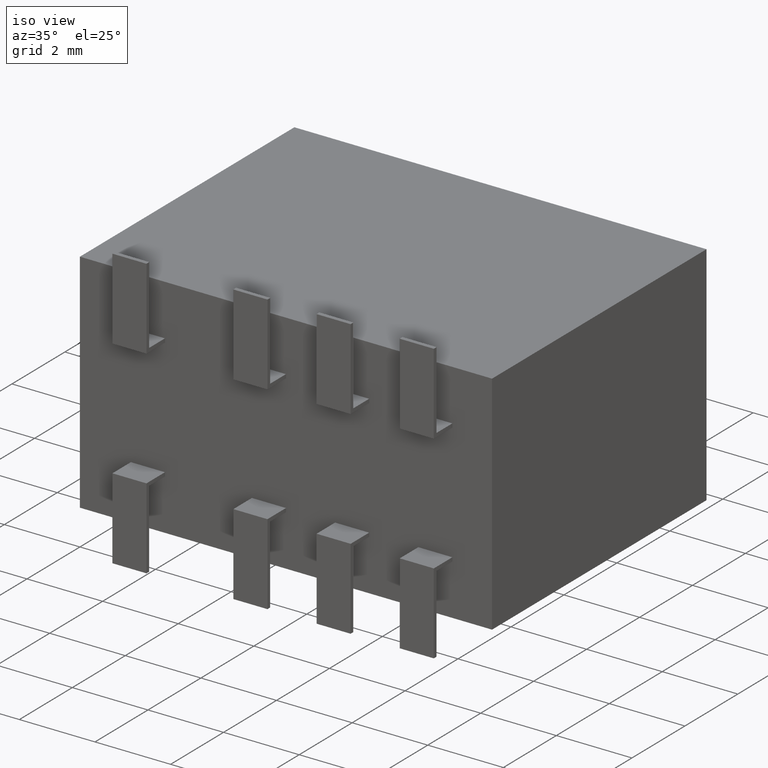
[diagram: clean part render]
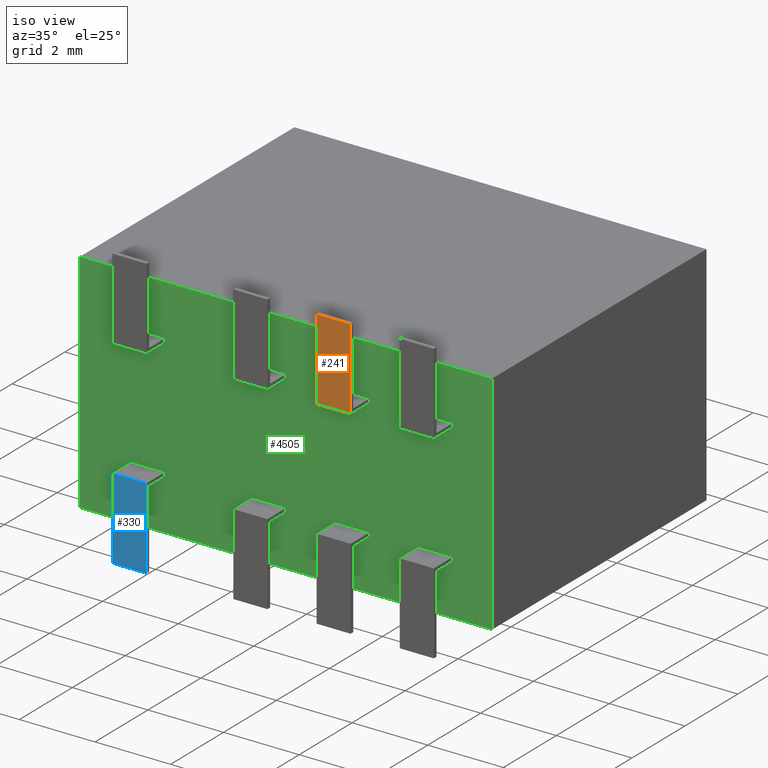
[diagram: same view with three faces highlighted in distinct colors, each labeled with its STEP entity id]
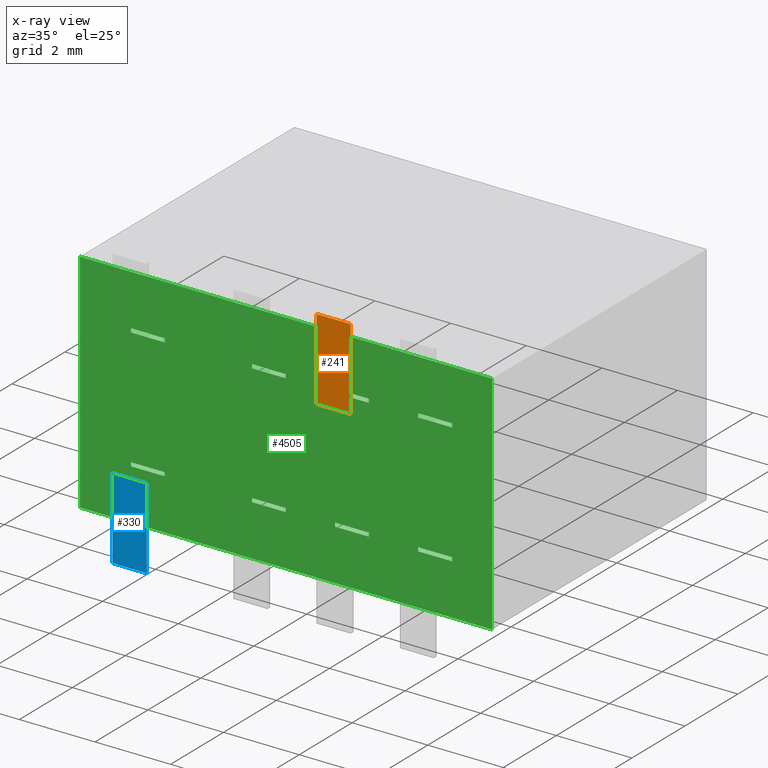
[diagram: x-ray of the same camera — body ghosted, the three highlighted faces saturated]
A machine part, iso view with three faces highlighted in distinct colors.
The next image is the same camera in x-ray (body ghosted, the three faces saturated) — at least one of them is partly hidden behind the body in this view.
Their STEP definitions:

[orange] entity #241 — the highlighted planar face has unit normal (0, -1, -0).
#16 = CARTESIAN_POINT ( 'NONE',  ( 6.750000000000000000, -0.6999999999999997300, -1.450000000000000000 ) ) ;
#88 = CARTESIAN_POINT ( 'NONE',  ( 6.750000000000000000, -0.6999999999999998400, 0.7000000000000000700 ) ) ;
#164 = DIRECTION ( 'NONE',  ( -0.0000000000000000000, 5.042800802258161100E-017, -1.000000000000000000 ) ) ;
#241 = ADVANCED_FACE ( 'NONE', ( #3960 ), #2389, .T. ) ;
#380 = VECTOR ( 'NONE', #4202, 1000.000000000000000 ) ;
#464 = LINE ( 'NONE', #2106, #4054 ) ;
#562 = EDGE_CURVE ( 'NONE', #3368, #1516, #771, .T. ) ;
#740 = DIRECTION ( 'NONE',  ( 0.0000000000000000000, 5.042800802258160500E-017, -1.000000000000000000 ) ) ;
#771 = LINE ( 'NONE', #3599, #4382 ) ;
#850 = ORIENTED_EDGE ( 'NONE', *, *, #562, .F. ) ;
#991 = EDGE_CURVE ( 'NONE', #1769, #2698, #3658, .T. ) ;
#1031 = DIRECTION ( 'NONE',  ( 0.0000000000000000000, -1.000000000000000000, -5.042800802258160500E-017 ) ) ;
#1058 = LINE ( 'NONE', #88, #380 ) ;
#1144 = EDGE_CURVE ( 'NONE', #2698, #1516, #464, .T. ) ;
#1180 = ORIENTED_EDGE ( 'NONE', *, *, #3031, .F. ) ;
#1516 = VERTEX_POINT ( 'NONE', #4413 ) ;
#1762 = CARTESIAN_POINT ( 'NONE',  ( 6.750000000000000000, -0.6999999999999998400, 0.7000000000000000700 ) ) ;
#1769 = VERTEX_POINT ( 'NONE', #1762 ) ;
#2101 = AXIS2_PLACEMENT_3D ( 'NONE', #16, #1031, #740 ) ;
#2106 = CARTESIAN_POINT ( 'NONE',  ( 6.750000000000000000, -0.6999999999999997300, -1.450000000000000000 ) ) ;
#2247 = EDGE_LOOP ( 'NONE', ( #3046, #850, #1180, #2982 ) ) ;
#2389 = PLANE ( 'NONE',  #2101 ) ;
#2698 = VERTEX_POINT ( 'NONE', #3659 ) ;
#2982 = ORIENTED_EDGE ( 'NONE', *, *, #991, .T. ) ;
#3031 = EDGE_CURVE ( 'NONE', #1769, #3368, #1058, .T. ) ;
#3046 = ORIENTED_EDGE ( 'NONE', *, *, #1144, .T. ) ;
#3283 = CARTESIAN_POINT ( 'NONE',  ( 7.649999999999999500, -0.6999999999999998400, 0.7000000000000000700 ) ) ;
#3368 = VERTEX_POINT ( 'NONE', #3283 ) ;
#3449 = DIRECTION ( 'NONE',  ( 1.000000000000000000, 0.0000000000000000000, 0.0000000000000000000 ) ) ;
#3599 = CARTESIAN_POINT ( 'NONE',  ( 7.649999999999999500, -0.6999999999999997300, -1.450000000000000000 ) ) ;
#3658 = LINE ( 'NONE', #3809, #3713 ) ;
#3659 = CARTESIAN_POINT ( 'NONE',  ( 6.750000000000000000, -0.6999999999999997300, -1.450000000000000000 ) ) ;
#3713 = VECTOR ( 'NONE', #4165, 1000.000000000000000 ) ;
#3809 = CARTESIAN_POINT ( 'NONE',  ( 6.750000000000000000, -0.6999999999999997300, -1.450000000000000000 ) ) ;
#3960 = FACE_OUTER_BOUND ( 'NONE', #2247, .T. ) ;
#4054 = VECTOR ( 'NONE', #3449, 1000.000000000000000 ) ;
#4165 = DIRECTION ( 'NONE',  ( -0.0000000000000000000, 5.042800802258161100E-017, -1.000000000000000000 ) ) ;
#4202 = DIRECTION ( 'NONE',  ( 1.000000000000000000, 0.0000000000000000000, 0.0000000000000000000 ) ) ;
#4382 = VECTOR ( 'NONE', #164, 1000.000000000000000 ) ;
#4413 = CARTESIAN_POINT ( 'NONE',  ( 7.649999999999999500, -0.6999999999999997300, -1.450000000000000000 ) ) ;

[blue] entity #330 — the highlighted planar face has unit normal (0, 1, -0).
#122 = VERTEX_POINT ( 'NONE', #2603 ) ;
#207 = EDGE_CURVE ( 'NONE', #2477, #4412, #4174, .T. ) ;
#250 = DIRECTION ( 'NONE',  ( 0.0000000000000000000, 5.042800802258161100E-017, 1.000000000000000000 ) ) ;
#330 = ADVANCED_FACE ( 'NONE', ( #476 ), #3135, .F. ) ;
#445 = VERTEX_POINT ( 'NONE', #1081 ) ;
#476 = FACE_OUTER_BOUND ( 'NONE', #3208, .T. ) ;
#602 = CARTESIAN_POINT ( 'NONE',  ( 1.350000000000000500, -0.6999999999999997300, -4.549999999999999800 ) ) ;
#870 = ORIENTED_EDGE ( 'NONE', *, *, #1440, .F. ) ;
#874 = LINE ( 'NONE', #602, #3552 ) ;
#897 = DIRECTION ( 'NONE',  ( 1.000000000000000000, 0.0000000000000000000, 0.0000000000000000000 ) ) ;
#1049 = CARTESIAN_POINT ( 'NONE',  ( 1.350000000000000500, -0.6999999999999997300, -4.549999999999999800 ) ) ;
#1081 = CARTESIAN_POINT ( 'NONE',  ( 1.350000000000000500, -0.6999999999999998400, -6.700000000000000200 ) ) ;
#1274 = VECTOR ( 'NONE', #3170, 1000.000000000000000 ) ;
#1305 = VECTOR ( 'NONE', #1746, 1000.000000000000000 ) ;
#1345 = CARTESIAN_POINT ( 'NONE',  ( 2.250000000000000400, -0.6999999999999997300, -4.549999999999999800 ) ) ;
#1391 = DIRECTION ( 'NONE',  ( 0.0000000000000000000, 5.042800802258160500E-017, 1.000000000000000000 ) ) ;
#1440 = EDGE_CURVE ( 'NONE', #445, #2477, #874, .T. ) ;
#1536 = AXIS2_PLACEMENT_3D ( 'NONE', #1049, #3498, #1391 ) ;
#1648 = CARTESIAN_POINT ( 'NONE',  ( 1.350000000000000500, -0.6999999999999997300, -4.549999999999999800 ) ) ;
#1706 = ORIENTED_EDGE ( 'NONE', *, *, #2458, .T. ) ;
#1746 = DIRECTION ( 'NONE',  ( 1.000000000000000000, 0.0000000000000000000, 0.0000000000000000000 ) ) ;
#2063 = VECTOR ( 'NONE', #897, 1000.000000000000000 ) ;
#2458 = EDGE_CURVE ( 'NONE', #122, #4412, #3307, .T. ) ;
#2477 = VERTEX_POINT ( 'NONE', #2561 ) ;
#2561 = CARTESIAN_POINT ( 'NONE',  ( 1.350000000000000500, -0.6999999999999997300, -4.549999999999999800 ) ) ;
#2603 = CARTESIAN_POINT ( 'NONE',  ( 2.250000000000000400, -0.6999999999999998400, -6.700000000000000200 ) ) ;
#2808 = CARTESIAN_POINT ( 'NONE',  ( 2.250000000000000400, -0.6999999999999997300, -4.549999999999999800 ) ) ;
#3135 = PLANE ( 'NONE',  #1536 ) ;
#3170 = DIRECTION ( 'NONE',  ( 0.0000000000000000000, 5.042800802258161100E-017, 1.000000000000000000 ) ) ;
#3208 = EDGE_LOOP ( 'NONE', ( #3536, #1706, #4046, #870 ) ) ;
#3307 = LINE ( 'NONE', #2808, #1274 ) ;
#3498 = DIRECTION ( 'NONE',  ( 0.0000000000000000000, 1.000000000000000000, -5.042800802258160500E-017 ) ) ;
#3536 = ORIENTED_EDGE ( 'NONE', *, *, #3581, .T. ) ;
#3552 = VECTOR ( 'NONE', #250, 1000.000000000000000 ) ;
#3581 = EDGE_CURVE ( 'NONE', #445, #122, #4343, .T. ) ;
#3869 = CARTESIAN_POINT ( 'NONE',  ( 1.350000000000000500, -0.6999999999999998400, -6.700000000000000200 ) ) ;
#4046 = ORIENTED_EDGE ( 'NONE', *, *, #207, .F. ) ;
#4174 = LINE ( 'NONE', #1648, #2063 ) ;
#4343 = LINE ( 'NONE', #3869, #1305 ) ;
#4412 = VERTEX_POINT ( 'NONE', #1345 ) ;

[green] entity #4505 — the highlighted planar face has unit normal (0, -1, 0).
#13 = CARTESIAN_POINT ( 'NONE',  ( 10.90000000000000000, 0.0000000000000000000, -6.000000000000000000 ) ) ;
#22 = LINE ( 'NONE', #2059, #4154 ) ;
#23 = DIRECTION ( 'NONE',  ( 0.0000000000000000000, -1.224646799147353700E-016, -1.000000000000000000 ) ) ;
#34 = CARTESIAN_POINT ( 'NONE',  ( 0.0000000000000000000, 0.0000000000000000000, 0.0000000000000000000 ) ) ;
#39 = CARTESIAN_POINT ( 'NONE',  ( 10.90000000000000000, 0.0000000000000000000, 0.0000000000000000000 ) ) ;
#47 = ORIENTED_EDGE ( 'NONE', *, *, #2267, .T. ) ;
#62 = EDGE_CURVE ( 'NONE', #1446, #888, #1739, .T. ) ;
#114 = CARTESIAN_POINT ( 'NONE',  ( 1.350000000000000500, 2.277843046414076900E-016, -4.649999999999999500 ) ) ;
#123 = VERTEX_POINT ( 'NONE', #514 ) ;
#127 = ORIENTED_EDGE ( 'NONE', *, *, #243, .F. ) ;
#129 = ORIENTED_EDGE ( 'NONE', *, *, #62, .F. ) ;
#147 = LINE ( 'NONE', #770, #4114 ) ;
#152 = VECTOR ( 'NONE', #2433, 1000.000000000000000 ) ;
#179 = ORIENTED_EDGE ( 'NONE', *, *, #3994, .T. ) ;
#211 = ORIENTED_EDGE ( 'NONE', *, *, #3495, .F. ) ;
#215 = VECTOR ( 'NONE', #665, 1000.000000000000000 ) ;
#216 = ORIENTED_EDGE ( 'NONE', *, *, #3694, .F. ) ;
#227 = EDGE_LOOP ( 'NONE', ( #2551, #382, #633, #603 ) ) ;
#243 = EDGE_CURVE ( 'NONE', #3788, #2144, #4018, .T. ) ;
#246 = VERTEX_POINT ( 'NONE', #3481 ) ;
#252 = FACE_BOUND ( 'NONE', #3858, .T. ) ;
#282 = EDGE_LOOP ( 'NONE', ( #4088, #1639, #3617, #4474 ) ) ;
#299 = LINE ( 'NONE', #1007, #1302 ) ;
#308 = VECTOR ( 'NONE', #2259, 1000.000000000000000 ) ;
#312 = VERTEX_POINT ( 'NONE', #684 ) ;
#320 = VERTEX_POINT ( 'NONE', #3801 ) ;
#342 = VERTEX_POINT ( 'NONE', #1065 ) ;
#353 = CARTESIAN_POINT ( 'NONE',  ( 1.350000000000000500, 2.277843046414076900E-016, -1.350000000000000100 ) ) ;
#375 = VERTEX_POINT ( 'NONE', #2861 ) ;
#376 = ORIENTED_EDGE ( 'NONE', *, *, #2889, .F. ) ;
#379 = DIRECTION ( 'NONE',  ( 1.000000000000000000, 0.0000000000000000000, 0.0000000000000000000 ) ) ;
#382 = ORIENTED_EDGE ( 'NONE', *, *, #1849, .F. ) ;
#427 = VECTOR ( 'NONE', #3524, 1000.000000000000000 ) ;
#441 = ORIENTED_EDGE ( 'NONE', *, *, #1908, .T. ) ;
#447 = VERTEX_POINT ( 'NONE', #3924 ) ;
#449 = EDGE_LOOP ( 'NONE', ( #2692, #2022, #2090, #1430 ) ) ;
#469 = VECTOR ( 'NONE', #2415, 1000.000000000000000 ) ;
#491 = CARTESIAN_POINT ( 'NONE',  ( 4.549999999999999800, 2.400307726328811900E-016, -1.450000000000000000 ) ) ;
#514 = CARTESIAN_POINT ( 'NONE',  ( 1.350000000000000500, 2.400307726328811900E-016, -1.450000000000000000 ) ) ;
#519 = CARTESIAN_POINT ( 'NONE',  ( 8.949999999999999300, 2.400307726328811900E-016, -1.450000000000000000 ) ) ;
#542 = LINE ( 'NONE', #4506, #3627 ) ;
#546 = ORIENTED_EDGE ( 'NONE', *, *, #2465, .T. ) ;
#575 = CARTESIAN_POINT ( 'NONE',  ( 4.549999999999999800, 2.277843046414076900E-016, -1.350000000000000100 ) ) ;
#593 = LINE ( 'NONE', #3776, #1373 ) ;
#603 = ORIENTED_EDGE ( 'NONE', *, *, #1167, .F. ) ;
#633 = ORIENTED_EDGE ( 'NONE', *, *, #3045, .F. ) ;
#653 = CARTESIAN_POINT ( 'NONE',  ( 8.949999999999999300, 2.400307726328811900E-016, -4.549999999999999800 ) ) ;
#665 = DIRECTION ( 'NONE',  ( 1.000000000000000000, 0.0000000000000000000, 0.0000000000000000000 ) ) ;
#668 = VERTEX_POINT ( 'NONE', #3978 ) ;
#669 = DIRECTION ( 'NONE',  ( 1.000000000000000000, 0.0000000000000000000, 0.0000000000000000000 ) ) ;
#673 = CARTESIAN_POINT ( 'NONE',  ( 2.250000000000000400, 2.400307726328811900E-016, -4.549999999999999800 ) ) ;
#684 = CARTESIAN_POINT ( 'NONE',  ( 4.549999999999999800, 2.400307726328811900E-016, -1.450000000000000000 ) ) ;
#770 = CARTESIAN_POINT ( 'NONE',  ( 4.549999999999999800, 2.277843046414076900E-016, -4.649999999999999500 ) ) ;
#775 = VECTOR ( 'NONE', #1734, 1000.000000000000000 ) ;
#783 = DIRECTION ( 'NONE',  ( 0.0000000000000000000, -1.224646799147353700E-016, 1.000000000000000000 ) ) ;
#809 = EDGE_CURVE ( 'NONE', #447, #4301, #2837, .T. ) ;
#816 = CARTESIAN_POINT ( 'NONE',  ( 2.250000000000000400, 2.277843046414076900E-016, -1.350000000000000100 ) ) ;
#828 = LINE ( 'NONE', #2926, #308 ) ;
#888 = VERTEX_POINT ( 'NONE', #4189 ) ;
#904 = EDGE_CURVE ( 'NONE', #1053, #4450, #22, .T. ) ;
#910 = VECTOR ( 'NONE', #4477, 1000.000000000000000 ) ;
#939 = ORIENTED_EDGE ( 'NONE', *, *, #2062, .T. ) ;
#945 = VERTEX_POINT ( 'NONE', #816 ) ;
#975 = CARTESIAN_POINT ( 'NONE',  ( 1.350000000000000500, 2.400307726328811900E-016, -4.549999999999999800 ) ) ;
#1002 = ORIENTED_EDGE ( 'NONE', *, *, #3789, .F. ) ;
#1007 = CARTESIAN_POINT ( 'NONE',  ( 1.350000000000000500, 2.400307726328811900E-016, -4.549999999999999800 ) ) ;
#1029 = EDGE_CURVE ( 'NONE', #246, #2144, #3331, .T. ) ;
#1030 = LINE ( 'NONE', #2409, #3230 ) ;
#1033 = CARTESIAN_POINT ( 'NONE',  ( 4.549999999999999800, 2.400307726328811900E-016, -1.450000000000000000 ) ) ;
#1047 = CARTESIAN_POINT ( 'NONE',  ( 7.649999999999999500, 0.0000000000000000000, -1.450000000000000000 ) ) ;
#1048 = LINE ( 'NONE', #1371, #152 ) ;
#1053 = VERTEX_POINT ( 'NONE', #1383 ) ;
#1059 = ORIENTED_EDGE ( 'NONE', *, *, #3263, .F. ) ;
#1065 = CARTESIAN_POINT ( 'NONE',  ( 10.90000000000000000, 0.0000000000000000000, 0.0000000000000000000 ) ) ;
#1067 = CARTESIAN_POINT ( 'NONE',  ( 2.250000000000000400, 2.400307726328811900E-016, -4.549999999999999800 ) ) ;
#1069 = EDGE_CURVE ( 'NONE', #1624, #2600, #1030, .T. ) ;
#1074 = LINE ( 'NONE', #1067, #2823 ) ;
#1080 = CARTESIAN_POINT ( 'NONE',  ( 4.549999999999999800, 2.400307726328811900E-016, -4.549999999999999800 ) ) ;
#1109 = EDGE_LOOP ( 'NONE', ( #3807, #179, #939, #2508 ) ) ;
#1128 = CARTESIAN_POINT ( 'NONE',  ( 7.649999999999999500, 2.277843046414076900E-016, -1.350000000000000100 ) ) ;
#1129 = EDGE_LOOP ( 'NONE', ( #1059, #2203, #2638, #129 ) ) ;
#1132 = DIRECTION ( 'NONE',  ( -1.000000000000000000, -0.0000000000000000000, -0.0000000000000000000 ) ) ;
#1147 = LINE ( 'NONE', #3061, #2121 ) ;
#1167 = EDGE_CURVE ( 'NONE', #4301, #342, #1667, .T. ) ;
#1176 = DIRECTION ( 'NONE',  ( 1.000000000000000000, 0.0000000000000000000, 0.0000000000000000000 ) ) ;
#1197 = EDGE_CURVE ( 'NONE', #3472, #4507, #3121, .T. ) ;
#1200 = LINE ( 'NONE', #2840, #1789 ) ;
#1267 = VERTEX_POINT ( 'NONE', #114 ) ;
#1302 = VECTOR ( 'NONE', #2042, 1000.000000000000000 ) ;
#1315 = CARTESIAN_POINT ( 'NONE',  ( 9.850000000000001400, 0.0000000000000000000, -4.649999999999999500 ) ) ;
#1330 = ORIENTED_EDGE ( 'NONE', *, *, #1614, .F. ) ;
#1371 = CARTESIAN_POINT ( 'NONE',  ( 2.250000000000000400, 2.400307726328811900E-016, -1.450000000000000000 ) ) ;
#1373 = VECTOR ( 'NONE', #1992, 1000.000000000000000 ) ;
#1383 = CARTESIAN_POINT ( 'NONE',  ( 6.750000000000000000, 2.400307726328811900E-016, -1.450000000000000000 ) ) ;
#1386 = DIRECTION ( 'NONE',  ( 0.0000000000000000000, -1.224646799147353700E-016, 1.000000000000000000 ) ) ;
#1387 = VERTEX_POINT ( 'NONE', #1935 ) ;
#1430 = ORIENTED_EDGE ( 'NONE', *, *, #3913, .F. ) ;
#1435 = LINE ( 'NONE', #653, #215 ) ;
#1446 = VERTEX_POINT ( 'NONE', #2986 ) ;
#1491 = VERTEX_POINT ( 'NONE', #2677 ) ;
#1494 = CARTESIAN_POINT ( 'NONE',  ( 0.0000000000000000000, 0.0000000000000000000, -6.000000000000000000 ) ) ;
#1529 = CARTESIAN_POINT ( 'NONE',  ( 6.750000000000000000, 2.277843046414076900E-016, -4.649999999999999500 ) ) ;
#1546 = LINE ( 'NONE', #575, #2839 ) ;
#1564 = VECTOR ( 'NONE', #1132, 1000.000000000000000 ) ;
#1576 = ORIENTED_EDGE ( 'NONE', *, *, #2908, .T. ) ;
#1580 = VERTEX_POINT ( 'NONE', #2033 ) ;
#1614 = EDGE_CURVE ( 'NONE', #1053, #3472, #1147, .T. ) ;
#1624 = VERTEX_POINT ( 'NONE', #1683 ) ;
#1630 = LINE ( 'NONE', #39, #4020 ) ;
#1639 = ORIENTED_EDGE ( 'NONE', *, *, #3501, .T. ) ;
#1642 = EDGE_LOOP ( 'NONE', ( #2472, #441, #3853, #1330 ) ) ;
#1647 = EDGE_CURVE ( 'NONE', #2875, #3788, #1200, .T. ) ;
#1667 = LINE ( 'NONE', #34, #775 ) ;
#1675 = CARTESIAN_POINT ( 'NONE',  ( 4.549999999999999800, 2.400307726328811900E-016, -4.549999999999999800 ) ) ;
#1683 = CARTESIAN_POINT ( 'NONE',  ( 9.850000000000001400, 0.0000000000000000000, -1.450000000000000000 ) ) ;
#1688 = CARTESIAN_POINT ( 'NONE',  ( 5.450000000000000200, 2.400307726328811900E-016, -1.450000000000000000 ) ) ;
#1710 = CARTESIAN_POINT ( 'NONE',  ( 7.649999999999999500, 2.400307726328811900E-016, -4.549999999999999800 ) ) ;
#1713 = LINE ( 'NONE', #1710, #3592 ) ;
#1717 = DIRECTION ( 'NONE',  ( 0.0000000000000000000, -1.224646799147353700E-016, -1.000000000000000000 ) ) ;
#1719 = EDGE_CURVE ( 'NONE', #2818, #3872, #3553, .T. ) ;
#1734 = DIRECTION ( 'NONE',  ( 1.000000000000000000, 0.0000000000000000000, 0.0000000000000000000 ) ) ;
#1737 = CARTESIAN_POINT ( 'NONE',  ( 9.850000000000001400, 2.400307726328811900E-016, -4.549999999999999800 ) ) ;
#1739 = LINE ( 'NONE', #1529, #4344 ) ;
#1774 = DIRECTION ( 'NONE',  ( 0.0000000000000000000, 0.0000000000000000000, -1.000000000000000000 ) ) ;
#1780 = CARTESIAN_POINT ( 'NONE',  ( 5.450000000000000200, 2.277843046414076900E-016, -1.350000000000000100 ) ) ;
#1786 = LINE ( 'NONE', #491, #3905 ) ;
#1789 = VECTOR ( 'NONE', #1717, 1000.000000000000000 ) ;
#1821 = EDGE_CURVE ( 'NONE', #312, #1580, #1786, .T. ) ;
#1849 = EDGE_CURVE ( 'NONE', #2847, #447, #4284, .T. ) ;
#1866 = LINE ( 'NONE', #1915, #3489 ) ;
#1877 = EDGE_CURVE ( 'NONE', #375, #4087, #147, .T. ) ;
#1908 = EDGE_CURVE ( 'NONE', #4450, #4507, #3666, .T. ) ;
#1915 = CARTESIAN_POINT ( 'NONE',  ( 5.450000000000000200, 2.400307726328811900E-016, -4.549999999999999800 ) ) ;
#1935 = CARTESIAN_POINT ( 'NONE',  ( 8.949999999999999300, 2.400307726328811900E-016, -1.450000000000000000 ) ) ;
#1941 = VECTOR ( 'NONE', #2945, 1000.000000000000000 ) ;
#1946 = FACE_BOUND ( 'NONE', #282, .T. ) ;
#1955 = CARTESIAN_POINT ( 'NONE',  ( 0.0000000000000000000, 0.0000000000000000000, 0.0000000000000000000 ) ) ;
#1960 = VERTEX_POINT ( 'NONE', #2569 ) ;
#1980 = EDGE_CURVE ( 'NONE', #1387, #1624, #3722, .T. ) ;
#1992 = DIRECTION ( 'NONE',  ( 0.0000000000000000000, -1.224646799147353700E-016, 1.000000000000000000 ) ) ;
#1993 = LINE ( 'NONE', #1033, #3507 ) ;
#2022 = ORIENTED_EDGE ( 'NONE', *, *, #2663, .T. ) ;
#2033 = CARTESIAN_POINT ( 'NONE',  ( 4.549999999999999800, 2.277843046414076900E-016, -1.350000000000000100 ) ) ;
#2042 = DIRECTION ( 'NONE',  ( 0.0000000000000000000, -1.224646799147353700E-016, -1.000000000000000000 ) ) ;
#2046 = CARTESIAN_POINT ( 'NONE',  ( 1.350000000000000500, 2.400307726328811900E-016, -4.549999999999999800 ) ) ;
#2059 = CARTESIAN_POINT ( 'NONE',  ( 6.750000000000000000, 2.400307726328811900E-016, -1.450000000000000000 ) ) ;
#2062 = EDGE_CURVE ( 'NONE', #320, #4087, #1866, .T. ) ;
#2090 = ORIENTED_EDGE ( 'NONE', *, *, #2291, .F. ) ;
#2097 = VECTOR ( 'NONE', #4497, 1000.000000000000000 ) ;
#2118 = LINE ( 'NONE', #3483, #3898 ) ;
#2121 = VECTOR ( 'NONE', #3442, 1000.000000000000000 ) ;
#2134 = FACE_BOUND ( 'NONE', #1129, .T. ) ;
#2144 = VERTEX_POINT ( 'NONE', #1315 ) ;
#2167 = VECTOR ( 'NONE', #3808, 1000.000000000000000 ) ;
#2187 = DIRECTION ( 'NONE',  ( 1.000000000000000000, 0.0000000000000000000, 0.0000000000000000000 ) ) ;
#2203 = ORIENTED_EDGE ( 'NONE', *, *, #3343, .T. ) ;
#2210 = VERTEX_POINT ( 'NONE', #2393 ) ;
#2259 = DIRECTION ( 'NONE',  ( 1.000000000000000000, 0.0000000000000000000, 0.0000000000000000000 ) ) ;
#2262 = LINE ( 'NONE', #353, #910 ) ;
#2267 = EDGE_CURVE ( 'NONE', #1491, #945, #2262, .T. ) ;
#2271 = EDGE_CURVE ( 'NONE', #3633, #888, #1713, .T. ) ;
#2287 = LINE ( 'NONE', #3944, #4449 ) ;
#2291 = EDGE_CURVE ( 'NONE', #2532, #2985, #2548, .T. ) ;
#2329 = CARTESIAN_POINT ( 'NONE',  ( 8.949999999999999300, 2.400307726328811900E-016, -1.450000000000000000 ) ) ;
#2339 = VECTOR ( 'NONE', #2187, 1000.000000000000000 ) ;
#2385 = DIRECTION ( 'NONE',  ( 1.000000000000000000, 0.0000000000000000000, 0.0000000000000000000 ) ) ;
#2390 = CARTESIAN_POINT ( 'NONE',  ( 1.350000000000000500, 2.277843046414076900E-016, -4.649999999999999500 ) ) ;
#2391 = DIRECTION ( 'NONE',  ( 0.0000000000000000000, -1.224646799147353700E-016, 1.000000000000000000 ) ) ;
#2393 = CARTESIAN_POINT ( 'NONE',  ( 2.250000000000000400, 0.0000000000000000000, -4.649999999999999500 ) ) ;
#2409 = CARTESIAN_POINT ( 'NONE',  ( 9.850000000000001400, 2.400307726328811900E-016, -1.450000000000000000 ) ) ;
#2415 = DIRECTION ( 'NONE',  ( 1.000000000000000000, 0.0000000000000000000, 0.0000000000000000000 ) ) ;
#2433 = DIRECTION ( 'NONE',  ( 0.0000000000000000000, -1.224646799147353700E-016, 1.000000000000000000 ) ) ;
#2465 = EDGE_CURVE ( 'NONE', #3872, #2210, #1074, .T. ) ;
#2469 = FACE_BOUND ( 'NONE', #1109, .T. ) ;
#2472 = ORIENTED_EDGE ( 'NONE', *, *, #904, .T. ) ;
#2508 = ORIENTED_EDGE ( 'NONE', *, *, #1877, .F. ) ;
#2515 = CARTESIAN_POINT ( 'NONE',  ( 5.450000000000000200, 0.0000000000000000000, -1.450000000000000000 ) ) ;
#2527 = DIRECTION ( 'NONE',  ( 1.000000000000000000, 0.0000000000000000000, 0.0000000000000000000 ) ) ;
#2532 = VERTEX_POINT ( 'NONE', #2515 ) ;
#2548 = LINE ( 'NONE', #1688, #2097 ) ;
#2551 = ORIENTED_EDGE ( 'NONE', *, *, #809, .F. ) ;
#2558 = VECTOR ( 'NONE', #3375, 1000.000000000000000 ) ;
#2569 = CARTESIAN_POINT ( 'NONE',  ( 8.949999999999999300, 2.277843046414076900E-016, -1.350000000000000100 ) ) ;
#2582 = ORIENTED_EDGE ( 'NONE', *, *, #1029, .T. ) ;
#2600 = VERTEX_POINT ( 'NONE', #4290 ) ;
#2638 = ORIENTED_EDGE ( 'NONE', *, *, #2271, .T. ) ;
#2663 = EDGE_CURVE ( 'NONE', #1580, #2985, #1546, .T. ) ;
#2677 = CARTESIAN_POINT ( 'NONE',  ( 1.350000000000000500, 2.277843046414076900E-016, -1.350000000000000100 ) ) ;
#2692 = ORIENTED_EDGE ( 'NONE', *, *, #1821, .T. ) ;
#2737 = CARTESIAN_POINT ( 'NONE',  ( 8.949999999999999300, 2.277843046414076900E-016, -1.350000000000000100 ) ) ;
#2750 = EDGE_CURVE ( 'NONE', #1387, #1960, #3823, .T. ) ;
#2816 = EDGE_CURVE ( 'NONE', #123, #1491, #593, .T. ) ;
#2818 = VERTEX_POINT ( 'NONE', #975 ) ;
#2823 = VECTOR ( 'NONE', #2827, 1000.000000000000000 ) ;
#2827 = DIRECTION ( 'NONE',  ( 0.0000000000000000000, -1.224646799147353700E-016, -1.000000000000000000 ) ) ;
#2837 = LINE ( 'NONE', #3043, #2558 ) ;
#2839 = VECTOR ( 'NONE', #1176, 1000.000000000000000 ) ;
#2840 = CARTESIAN_POINT ( 'NONE',  ( 8.949999999999999300, 2.400307726328811900E-016, -4.549999999999999800 ) ) ;
#2842 = CARTESIAN_POINT ( 'NONE',  ( 7.649999999999999500, 2.400307726328811900E-016, -4.549999999999999800 ) ) ;
#2847 = VERTEX_POINT ( 'NONE', #13 ) ;
#2860 = VECTOR ( 'NONE', #669, 1000.000000000000000 ) ;
#2861 = CARTESIAN_POINT ( 'NONE',  ( 4.549999999999999800, 2.277843046414076900E-016, -4.649999999999999500 ) ) ;
#2875 = VERTEX_POINT ( 'NONE', #3421 ) ;
#2884 = CARTESIAN_POINT ( 'NONE',  ( 0.0000000000000000000, 0.0000000000000000000, 0.0000000000000000000 ) ) ;
#2889 = EDGE_CURVE ( 'NONE', #123, #3306, #542, .T. ) ;
#2900 = VECTOR ( 'NONE', #3532, 1000.000000000000000 ) ;
#2908 = EDGE_CURVE ( 'NONE', #2875, #246, #1435, .T. ) ;
#2926 = CARTESIAN_POINT ( 'NONE',  ( 6.750000000000000000, 2.400307726328811900E-016, -4.549999999999999800 ) ) ;
#2945 = DIRECTION ( 'NONE',  ( 1.000000000000000000, 0.0000000000000000000, 0.0000000000000000000 ) ) ;
#2985 = VERTEX_POINT ( 'NONE', #1780 ) ;
#2986 = CARTESIAN_POINT ( 'NONE',  ( 6.750000000000000000, 2.277843046414076900E-016, -4.649999999999999500 ) ) ;
#3043 = CARTESIAN_POINT ( 'NONE',  ( 0.0000000000000000000, 0.0000000000000000000, 0.0000000000000000000 ) ) ;
#3045 = EDGE_CURVE ( 'NONE', #342, #2847, #1630, .T. ) ;
#3061 = CARTESIAN_POINT ( 'NONE',  ( 6.750000000000000000, 2.400307726328811900E-016, -1.450000000000000000 ) ) ;
#3107 = DIRECTION ( 'NONE',  ( 1.000000000000000000, 0.0000000000000000000, 0.0000000000000000000 ) ) ;
#3121 = LINE ( 'NONE', #3127, #2167 ) ;
#3126 = ORIENTED_EDGE ( 'NONE', *, *, #1719, .T. ) ;
#3127 = CARTESIAN_POINT ( 'NONE',  ( 7.649999999999999500, 2.400307726328811900E-016, -1.450000000000000000 ) ) ;
#3136 = DIRECTION ( 'NONE',  ( 1.000000000000000000, 0.0000000000000000000, 0.0000000000000000000 ) ) ;
#3194 = VECTOR ( 'NONE', #4104, 1000.000000000000000 ) ;
#3199 = FACE_BOUND ( 'NONE', #449, .T. ) ;
#3230 = VECTOR ( 'NONE', #2391, 1000.000000000000000 ) ;
#3232 = DIRECTION ( 'NONE',  ( 0.0000000000000000000, -0.0000000000000000000, -1.000000000000000000 ) ) ;
#3263 = EDGE_CURVE ( 'NONE', #668, #1446, #2287, .T. ) ;
#3273 = ORIENTED_EDGE ( 'NONE', *, *, #2816, .T. ) ;
#3293 = ORIENTED_EDGE ( 'NONE', *, *, #1647, .F. ) ;
#3306 = VERTEX_POINT ( 'NONE', #4387 ) ;
#3331 = LINE ( 'NONE', #1737, #2900 ) ;
#3343 = EDGE_CURVE ( 'NONE', #668, #3633, #828, .T. ) ;
#3375 = DIRECTION ( 'NONE',  ( -0.0000000000000000000, -0.0000000000000000000, 1.000000000000000000 ) ) ;
#3387 = LINE ( 'NONE', #1080, #427 ) ;
#3402 = DIRECTION ( 'NONE',  ( 0.0000000000000000000, -1.224646799147353700E-016, -1.000000000000000000 ) ) ;
#3421 = CARTESIAN_POINT ( 'NONE',  ( 8.949999999999999300, 2.400307726328811900E-016, -4.549999999999999800 ) ) ;
#3426 = VECTOR ( 'NONE', #4112, 1000.000000000000000 ) ;
#3442 = DIRECTION ( 'NONE',  ( 1.000000000000000000, 0.0000000000000000000, 0.0000000000000000000 ) ) ;
#3443 = CARTESIAN_POINT ( 'NONE',  ( 8.949999999999999300, 2.277843046414076900E-016, -4.649999999999999500 ) ) ;
#3455 = FACE_BOUND ( 'NONE', #1642, .T. ) ;
#3472 = VERTEX_POINT ( 'NONE', #1047 ) ;
#3474 = AXIS2_PLACEMENT_3D ( 'NONE', #2884, #3530, #3232 ) ;
#3481 = CARTESIAN_POINT ( 'NONE',  ( 9.850000000000001400, 2.400307726328811900E-016, -4.549999999999999800 ) ) ;
#3483 = CARTESIAN_POINT ( 'NONE',  ( 4.549999999999999800, 2.400307726328811900E-016, -4.549999999999999800 ) ) ;
#3489 = VECTOR ( 'NONE', #3402, 1000.000000000000000 ) ;
#3495 = EDGE_CURVE ( 'NONE', #3306, #945, #1048, .T. ) ;
#3501 = EDGE_CURVE ( 'NONE', #1960, #2600, #3676, .T. ) ;
#3507 = VECTOR ( 'NONE', #3107, 1000.000000000000000 ) ;
#3524 = DIRECTION ( 'NONE',  ( 0.0000000000000000000, -1.224646799147353700E-016, -1.000000000000000000 ) ) ;
#3530 = DIRECTION ( 'NONE',  ( 0.0000000000000000000, -1.000000000000000000, 0.0000000000000000000 ) ) ;
#3532 = DIRECTION ( 'NONE',  ( 0.0000000000000000000, -1.224646799147353700E-016, -1.000000000000000000 ) ) ;
#3553 = LINE ( 'NONE', #2046, #469 ) ;
#3558 = PLANE ( 'NONE',  #3474 ) ;
#3592 = VECTOR ( 'NONE', #23, 1000.000000000000000 ) ;
#3604 = EDGE_CURVE ( 'NONE', #4251, #375, #3387, .T. ) ;
#3616 = FACE_BOUND ( 'NONE', #3674, .T. ) ;
#3617 = ORIENTED_EDGE ( 'NONE', *, *, #1069, .F. ) ;
#3627 = VECTOR ( 'NONE', #2385, 1000.000000000000000 ) ;
#3633 = VERTEX_POINT ( 'NONE', #2842 ) ;
#3666 = LINE ( 'NONE', #3961, #2339 ) ;
#3674 = EDGE_LOOP ( 'NONE', ( #216, #3126, #546, #1002 ) ) ;
#3676 = LINE ( 'NONE', #2737, #2860 ) ;
#3694 = EDGE_CURVE ( 'NONE', #2818, #1267, #299, .T. ) ;
#3699 = EDGE_LOOP ( 'NONE', ( #3273, #47, #211, #376 ) ) ;
#3722 = LINE ( 'NONE', #519, #1941 ) ;
#3755 = CARTESIAN_POINT ( 'NONE',  ( 8.949999999999999300, 2.277843046414076900E-016, -4.649999999999999500 ) ) ;
#3776 = CARTESIAN_POINT ( 'NONE',  ( 1.350000000000000500, 2.400307726328811900E-016, -1.450000000000000000 ) ) ;
#3788 = VERTEX_POINT ( 'NONE', #3755 ) ;
#3789 = EDGE_CURVE ( 'NONE', #1267, #2210, #3902, .T. ) ;
#3801 = CARTESIAN_POINT ( 'NONE',  ( 5.450000000000000200, 2.400307726328811900E-016, -4.549999999999999800 ) ) ;
#3807 = ORIENTED_EDGE ( 'NONE', *, *, #3604, .F. ) ;
#3808 = DIRECTION ( 'NONE',  ( 0.0000000000000000000, -1.224646799147353700E-016, 1.000000000000000000 ) ) ;
#3823 = LINE ( 'NONE', #2329, #3426 ) ;
#3846 = CARTESIAN_POINT ( 'NONE',  ( 6.750000000000000000, 2.277843046414076900E-016, -1.350000000000000100 ) ) ;
#3853 = ORIENTED_EDGE ( 'NONE', *, *, #1197, .F. ) ;
#3854 = FACE_BOUND ( 'NONE', #3699, .T. ) ;
#3858 = EDGE_LOOP ( 'NONE', ( #3293, #1576, #2582, #127 ) ) ;
#3872 = VERTEX_POINT ( 'NONE', #673 ) ;
#3898 = VECTOR ( 'NONE', #3136, 1000.000000000000000 ) ;
#3902 = LINE ( 'NONE', #2390, #3194 ) ;
#3905 = VECTOR ( 'NONE', #783, 1000.000000000000000 ) ;
#3913 = EDGE_CURVE ( 'NONE', #312, #2532, #1993, .T. ) ;
#3924 = CARTESIAN_POINT ( 'NONE',  ( 0.0000000000000000000, 0.0000000000000000000, -6.000000000000000000 ) ) ;
#3944 = CARTESIAN_POINT ( 'NONE',  ( 6.750000000000000000, 2.400307726328811900E-016, -4.549999999999999800 ) ) ;
#3961 = CARTESIAN_POINT ( 'NONE',  ( 6.750000000000000000, 2.277843046414076900E-016, -1.350000000000000100 ) ) ;
#3978 = CARTESIAN_POINT ( 'NONE',  ( 6.750000000000000000, 2.400307726328811900E-016, -4.549999999999999800 ) ) ;
#3994 = EDGE_CURVE ( 'NONE', #4251, #320, #2118, .T. ) ;
#4009 = DIRECTION ( 'NONE',  ( 1.000000000000000000, 0.0000000000000000000, 0.0000000000000000000 ) ) ;
#4011 = FACE_OUTER_BOUND ( 'NONE', #227, .T. ) ;
#4018 = LINE ( 'NONE', #3443, #4179 ) ;
#4020 = VECTOR ( 'NONE', #1774, 1000.000000000000000 ) ;
#4087 = VERTEX_POINT ( 'NONE', #4247 ) ;
#4088 = ORIENTED_EDGE ( 'NONE', *, *, #2750, .T. ) ;
#4104 = DIRECTION ( 'NONE',  ( 1.000000000000000000, 0.0000000000000000000, 0.0000000000000000000 ) ) ;
#4112 = DIRECTION ( 'NONE',  ( 0.0000000000000000000, -1.224646799147353700E-016, 1.000000000000000000 ) ) ;
#4114 = VECTOR ( 'NONE', #2527, 1000.000000000000000 ) ;
#4154 = VECTOR ( 'NONE', #1386, 1000.000000000000000 ) ;
#4179 = VECTOR ( 'NONE', #379, 1000.000000000000000 ) ;
#4189 = CARTESIAN_POINT ( 'NONE',  ( 7.649999999999999500, 0.0000000000000000000, -4.649999999999999500 ) ) ;
#4247 = CARTESIAN_POINT ( 'NONE',  ( 5.450000000000000200, 0.0000000000000000000, -4.649999999999999500 ) ) ;
#4251 = VERTEX_POINT ( 'NONE', #1675 ) ;
#4284 = LINE ( 'NONE', #1494, #1564 ) ;
#4290 = CARTESIAN_POINT ( 'NONE',  ( 9.850000000000001400, 2.277843046414076900E-016, -1.350000000000000100 ) ) ;
#4301 = VERTEX_POINT ( 'NONE', #1955 ) ;
#4316 = DIRECTION ( 'NONE',  ( 0.0000000000000000000, -1.224646799147353700E-016, -1.000000000000000000 ) ) ;
#4344 = VECTOR ( 'NONE', #4009, 1000.000000000000000 ) ;
#4387 = CARTESIAN_POINT ( 'NONE',  ( 2.250000000000000400, 0.0000000000000000000, -1.450000000000000000 ) ) ;
#4449 = VECTOR ( 'NONE', #4316, 1000.000000000000000 ) ;
#4450 = VERTEX_POINT ( 'NONE', #3846 ) ;
#4474 = ORIENTED_EDGE ( 'NONE', *, *, #1980, .F. ) ;
#4477 = DIRECTION ( 'NONE',  ( 1.000000000000000000, 0.0000000000000000000, 0.0000000000000000000 ) ) ;
#4497 = DIRECTION ( 'NONE',  ( 0.0000000000000000000, -1.224646799147353700E-016, 1.000000000000000000 ) ) ;
#4505 = ADVANCED_FACE ( 'NONE', ( #3854, #3616, #3199, #3455, #2469, #2134, #252, #1946, #4011 ), #3558, .T. ) ;
#4506 = CARTESIAN_POINT ( 'NONE',  ( 1.350000000000000500, 2.400307726328811900E-016, -1.450000000000000000 ) ) ;
#4507 = VERTEX_POINT ( 'NONE', #1128 ) ;